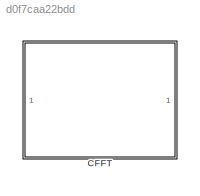
MODEL slx_d0f7caa22bdd
KIND library
CONFIG AbsTol = auto
CONFIG EnableMultiTasking = off
CONFIG FixedStep = auto
CONFIG MaxStep = auto
CONFIG MinStep = auto
CONFIG RelTol = 1e-3
CONFIG SampleTimeConstraint = Unconstrained
CONFIG SolverName = VariableStepAuto
CONFIG StartTime = 0.0
CONFIG StopTime = 10.0
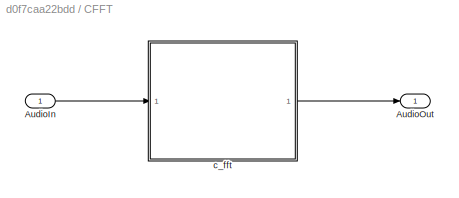
BLOCK [SubSystem] CFFT
BLOCK [Inport] CFFT/AudioIn
BLOCK [Outport] CFFT/AudioOut
  VectorParamsAs1DForOutWhenUnconnected = off
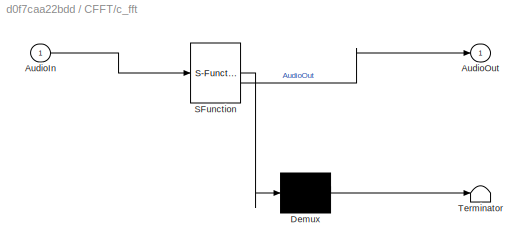
BLOCK [SubSystem] CFFT/c_fft
  ErrorFcn = Stateflow.Translate.translate
  PermitHierarchicalResolution = ExplicitOnly
  SFBlockType = MATLAB Function
  TreatAsAtomicUnit = on
BLOCK [Demux] CFFT/c_fft/ Demux 
  Outputs = 1
BLOCK [S-Function] CFFT/c_fft/ SFunction 
  EnableBusSupport = off
  FunctionName = sf_sfun
  Parameters = fftSize,twiddleStride
  PortCounts = [1 2]
  SFcnIsStateOwnerBlock = off
  SFunctionDeploymentMode = off
  Tag = Stateflow S-Function 2
BLOCK [Terminator] CFFT/c_fft/ Terminator 
BLOCK [Inport] CFFT/c_fft/AudioIn
BLOCK [Outport] CFFT/c_fft/AudioOut
  VectorParamsAs1DForOutWhenUnconnected = off
LINE CFFT/AudioIn:1 -> CFFT/c_fft:1
LINE CFFT/c_fft:1 -> CFFT/AudioOut:1
CHART CFFT/c_fft states=1 transitions=1
  STATE_LABEL 'eML_blk_kernel()'
  STATE_LABEL 'SCRIPT:\nfunction AudioOut = c_fft(AudioIn, fftSize, twiddleStride)    \n    % Cast input to complex if needed\n    if (isreal(AudioIn))\n        input = complex(AudioIn);\n    else \n        input = AudioIn;\n    end\n    \n    % nullcopy copies type, size, and complexity of input to output\n    AudioOut = coder.nullcopy(input);\n    [frameSize, numChannels] = size(AudioIn);\n    \n    % Set correct data type...<+638ch>'
CHART  states=0 transitions=0
